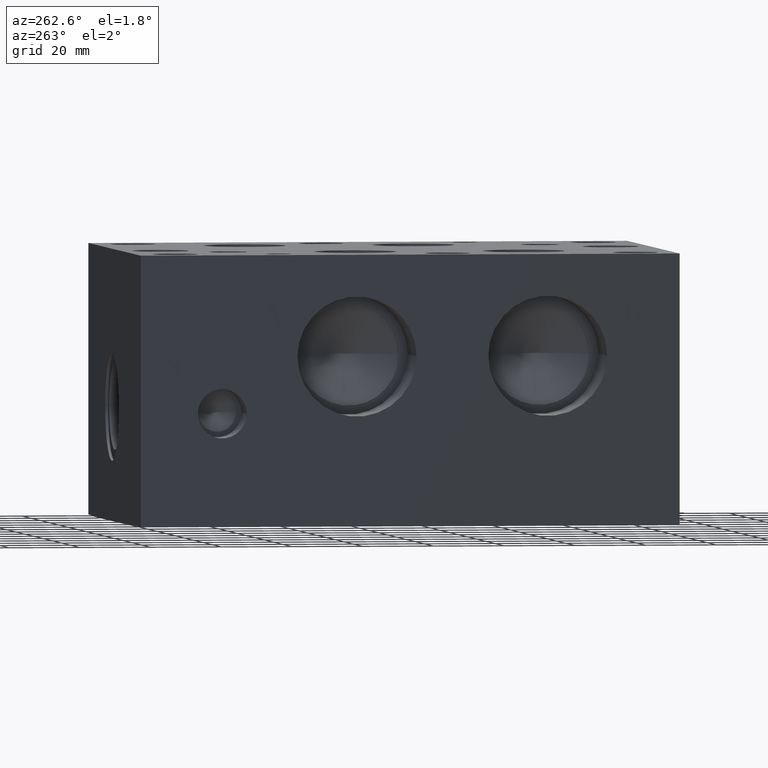
[diagram: clean part render]
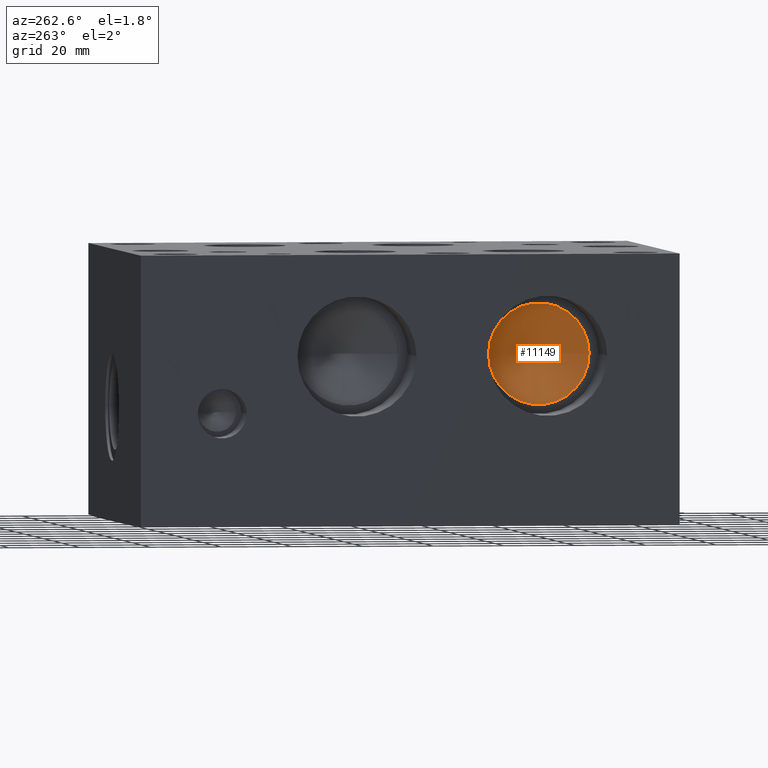
[diagram: same view with one face highlighted and labeled with its STEP entity id]
A machine part, auxiliary view. The second image highlights one B-rep face of the part: STEP entity #11149.
In plain terms, the highlighted conical surface has half-angle 60 deg.
Its self-contained STEP definition (entity closure, byte-faithful):
#66=CONICAL_SURFACE('',#11630,7.14375,1.0471975511966);
#135=CIRCLE('',#11631,14.2875);
#136=CIRCLE('',#11632,14.2875);
#1189=FACE_OUTER_BOUND('',#1821,.T.);
#1821=EDGE_LOOP('',(#9656,#9657,#9658,#9659));
#2935=LINE('',#18831,#4003);
#4003=VECTOR('',#13629,7.14375);
#5283=VERTEX_POINT('',#18827);
#5284=VERTEX_POINT('',#18828);
#5285=VERTEX_POINT('',#18830);
#6784=EDGE_CURVE('',#5283,#5284,#135,.T.);
#6785=EDGE_CURVE('',#5284,#5285,#2935,.T.);
#6786=EDGE_CURVE('',#5284,#5283,#136,.T.);
#9656=ORIENTED_EDGE('',*,*,#6784,.T.);
#9657=ORIENTED_EDGE('',*,*,#6785,.T.);
#9658=ORIENTED_EDGE('',*,*,#6785,.F.);
#9659=ORIENTED_EDGE('',*,*,#6786,.T.);
#11149=ADVANCED_FACE('',(#1189),#66,.F.);
#11630=AXIS2_PLACEMENT_3D('',#18826,#13625,#13626);
#11631=AXIS2_PLACEMENT_3D('',#18829,#13627,#13628);
#11632=AXIS2_PLACEMENT_3D('',#18832,#13630,#13631);
#13625=DIRECTION('center_axis',(-1.,0.,0.));
#13626=DIRECTION('ref_axis',(0.,1.,0.));
#13627=DIRECTION('center_axis',(-1.,0.,0.));
#13628=DIRECTION('ref_axis',(0.,1.,0.));
#13629=DIRECTION('',(0.5,0.866025403784438,-1.06057523872491E-16));
#13630=DIRECTION('center_axis',(-1.,0.,0.));
#13631=DIRECTION('ref_axis',(0.,1.,0.));
#18826=CARTESIAN_POINT('Origin',(23.9485359855234,37.3126,47.625));
#18827=CARTESIAN_POINT('',(19.82409,51.6001,47.625));
#18828=CARTESIAN_POINT('',(19.82409,23.0251,47.625));
#18829=CARTESIAN_POINT('Origin',(19.82409,37.3126,47.625));
#18830=CARTESIAN_POINT('',(28.0729819710468,37.3126,47.625));
#18831=CARTESIAN_POINT('',(23.9485359855234,30.16885,47.625));
#18832=CARTESIAN_POINT('Origin',(19.82409,37.3126,47.625));